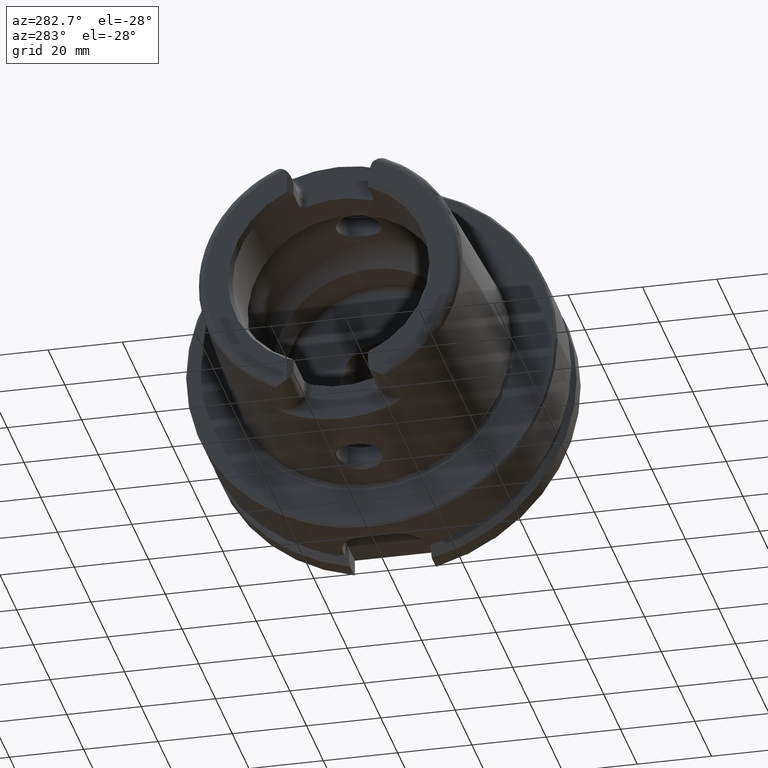
[diagram: clean part render]
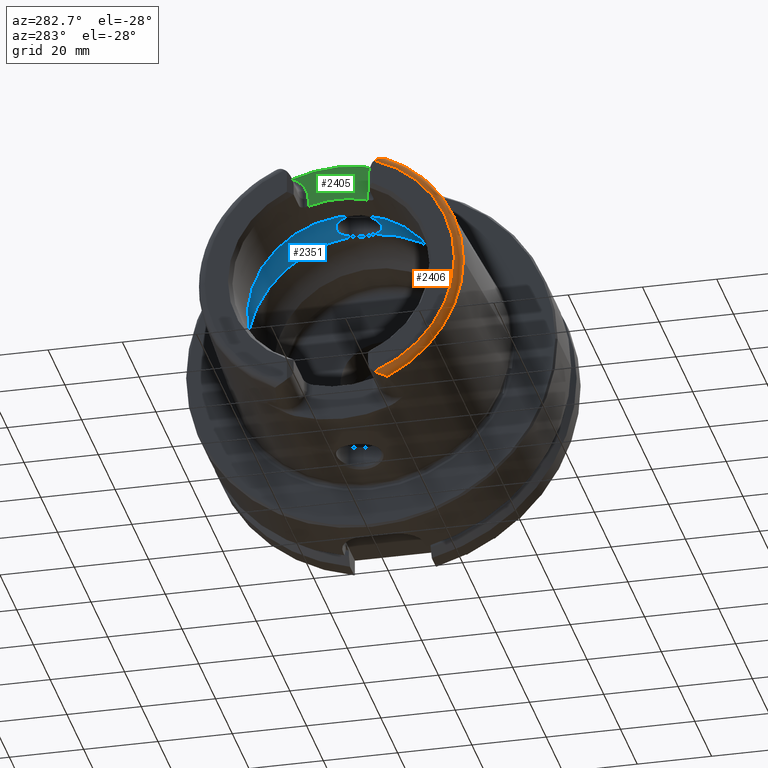
[diagram: same view with three faces highlighted in distinct colors, each labeled with its STEP entity id]
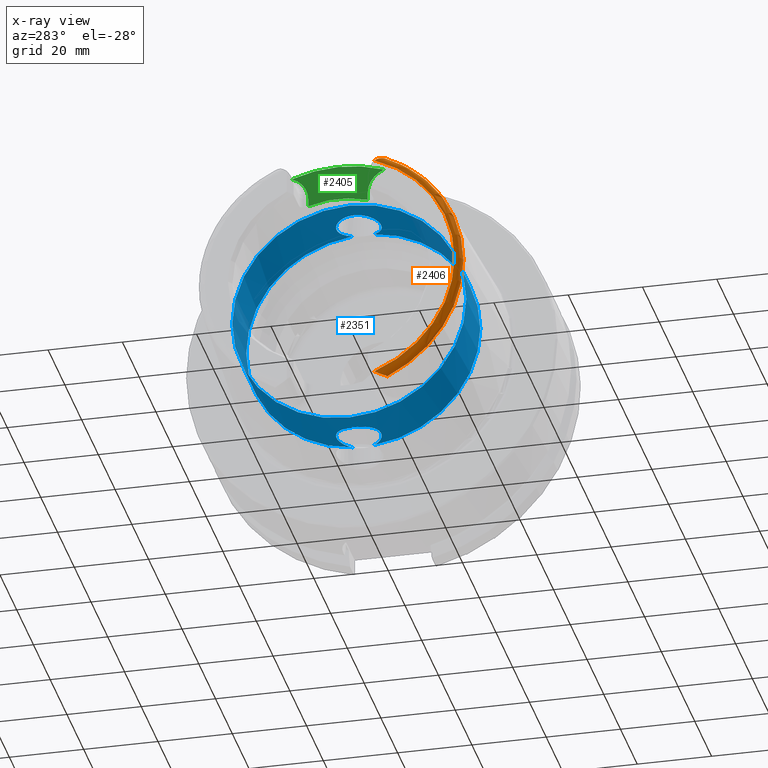
[diagram: x-ray of the same camera — body ghosted, the three highlighted faces saturated]
A machine part, auxiliary view with three faces highlighted in distinct colors.
The next image is the same camera in x-ray (body ghosted, the three faces saturated) — at least one of them is partly hidden behind the body in this view.
Their STEP definitions:

[orange] entity #2406 — the highlighted toroidal blend (fillet) surface has major radius 33.6002 mm and minor (blend) radius 2 mm.
#52=TOROIDAL_SURFACE('',#2688,33.6001839277785,2.);
#85=B_SPLINE_CURVE_WITH_KNOTS('',3,(#4098,#4099,#4100,#4101,#4102,#4103,
#4104,#4105,#4106,#4107,#4108,#4109),.UNSPECIFIED.,.F.,.F.,(4,2,2,2,2,4),
(-0.744571126726518,-0.701342830888641,-0.656522678464628,-0.531122919946975,
-0.406784567241786,-0.320835419118986),.UNSPECIFIED.);
#136=B_SPLINE_CURVE_WITH_KNOTS('',3,(#5325,#5326,#5327,#5328,#5329,#5330,
#5331,#5332,#5333,#5334,#5335,#5336),.UNSPECIFIED.,.F.,.F.,(4,2,2,2,2,4),
(-0.330531435638092,-0.267908000768824,-0.159978118105095,-0.0786368985358016,
-0.0319888850382436,0.),.UNSPECIFIED.);
#572=FACE_OUTER_BOUND('',#719,.T.);
#719=EDGE_LOOP('',(#2120,#2121,#2122,#2123,#2124));
#804=CIRCLE('',#2554,33.6001839277785);
#810=CIRCLE('',#2570,35.5976786130245);
#814=CIRCLE('',#2574,35.5976786130245);
#995=VERTEX_POINT('',#4079);
#996=VERTEX_POINT('',#4081);
#1001=VERTEX_POINT('',#4097);
#1016=VERTEX_POINT('',#4316);
#1017=VERTEX_POINT('',#4318);
#1272=EDGE_CURVE('',#996,#995,#804,.T.);
#1280=EDGE_CURVE('',#1001,#996,#85,.T.);
#1300=EDGE_CURVE('',#1016,#1017,#810,.T.);
#1313=EDGE_CURVE('',#1001,#1016,#814,.T.);
#1477=EDGE_CURVE('',#995,#1017,#136,.T.);
#2120=ORIENTED_EDGE('',*,*,#1280,.T.);
#2121=ORIENTED_EDGE('',*,*,#1272,.T.);
#2122=ORIENTED_EDGE('',*,*,#1477,.T.);
#2123=ORIENTED_EDGE('',*,*,#1300,.F.);
#2124=ORIENTED_EDGE('',*,*,#1313,.F.);
#2406=ADVANCED_FACE('',(#572),#52,.T.);
#2554=AXIS2_PLACEMENT_3D('',#4082,#2983,#2984);
#2570=AXIS2_PLACEMENT_3D('',#4319,#3027,#3028);
#2574=AXIS2_PLACEMENT_3D('',#4446,#3035,#3036);
#2688=AXIS2_PLACEMENT_3D('',#5324,#3321,#3322);
#2983=DIRECTION('center_axis',(1.,0.,0.));
#2984=DIRECTION('ref_axis',(0.,0.,-1.));
#3027=DIRECTION('center_axis',(1.,0.,0.));
#3028=DIRECTION('ref_axis',(0.,0.,-1.));
#3035=DIRECTION('center_axis',(1.,0.,0.));
#3036=DIRECTION('ref_axis',(0.,0.,-1.));
#3321=DIRECTION('center_axis',(1.,0.,0.));
#3322=DIRECTION('ref_axis',(0.,0.,-1.));
#4079=CARTESIAN_POINT('',(-50.,-12.0743049948301,-31.355757348091));
#4081=CARTESIAN_POINT('',(-50.,-12.0743049948301,31.355757348091));
#4082=CARTESIAN_POINT('Origin',(-50.,0.,0.));
#4097=CARTESIAN_POINT('',(-48.1000748840304,-15.0787152148571,32.2463497175327));
#4098=CARTESIAN_POINT('Ctrl Pts',(-48.1000748840304,-15.0787152148571,32.2463497175327));
#4099=CARTESIAN_POINT('Ctrl Pts',(-48.2106037175751,-15.0644627457708,32.2469012894916));
#4100=CARTESIAN_POINT('Ctrl Pts',(-48.3154292138326,-15.0273539899824,32.2483385926998));
#4101=CARTESIAN_POINT('Ctrl Pts',(-48.5163157198425,-14.9224481921473,32.2501843906849));
#4102=CARTESIAN_POINT('Ctrl Pts',(-48.6121978837474,-14.8534224082598,32.2504380645671));
#4103=CARTESIAN_POINT('Ctrl Pts',(-48.945264184207,-14.5689466462258,32.2439376039327));
#4104=CARTESIAN_POINT('Ctrl Pts',(-49.1880723127852,-14.2607780319834,32.2227822574558));
#4105=CARTESIAN_POINT('Ctrl Pts',(-49.6101150709732,-13.5547183211213,32.0774653757186));
#4106=CARTESIAN_POINT('Ctrl Pts',(-49.7793847368059,-13.1765954395989,31.957165019384));
#4107=CARTESIAN_POINT('Ctrl Pts',(-49.9574602860506,-12.5580264083439,31.6658578550016));
#4108=CARTESIAN_POINT('Ctrl Pts',(-50.,-12.3091419271059,31.5216553492714));
#4109=CARTESIAN_POINT('Ctrl Pts',(-50.,-12.0743049948301,31.355757348091));
#4316=CARTESIAN_POINT('',(-48.1000748840304,-35.5976786130245,-4.35945831705167E-15));
#4318=CARTESIAN_POINT('',(-48.1000748840304,-15.0787152148571,-32.2463497175327));
#4319=CARTESIAN_POINT('Origin',(-48.1000748840304,0.,0.));
#4446=CARTESIAN_POINT('Origin',(-48.1000748840304,0.,0.));
#5324=CARTESIAN_POINT('Origin',(-48.,0.,0.));
#5325=CARTESIAN_POINT('Ctrl Pts',(-50.,-12.0743049948301,-31.355757348091));
#5326=CARTESIAN_POINT('Ctrl Pts',(-50.,-12.2858381230511,-31.5051926299064));
#5327=CARTESIAN_POINT('Ctrl Pts',(-49.9653696826563,-12.5170331398669,-31.6430588255455));
#5328=CARTESIAN_POINT('Ctrl Pts',(-49.7810065498998,-13.1911222585011,-31.9692156023964));
#5329=CARTESIAN_POINT('Ctrl Pts',(-49.5806767805337,-13.6194685503754,-32.0969374367804));
#5330=CARTESIAN_POINT('Ctrl Pts',(-49.1716377200869,-14.2730899346346,-32.2192774131036));
#5331=CARTESIAN_POINT('Ctrl Pts',(-48.9774936618895,-14.5201969661755,-32.2395201073332));
#5332=CARTESIAN_POINT('Ctrl Pts',(-48.6675943633755,-14.8125911006811,-32.2505512851489));
#5333=CARTESIAN_POINT('Ctrl Pts',(-48.5398374959924,-14.912197389574,-32.2504544601106));
#5334=CARTESIAN_POINT('Ctrl Pts',(-48.3063803700173,-15.0305209025154,-32.2482139663407));
#5335=CARTESIAN_POINT('Ctrl Pts',(-48.2058276135777,-15.0650786147019,-32.2468774553032));
#5336=CARTESIAN_POINT('Ctrl Pts',(-48.1000748840304,-15.0787152148571,-32.2463497175327));

[blue] entity #2351 — the highlighted cylindrical surface (bore or boss wall) has radius 31.5 mm, axis along (-1, 0, 0).
#101=B_SPLINE_CURVE_WITH_KNOTS('',3,(#4489,#4490,#4491,#4492,#4493,#4494,
#4495,#4496,#4497,#4498,#4499,#4500,#4501,#4502,#4503,#4504,#4505,#4506,
#4507,#4508,#4509,#4510,#4511,#4512,#4513,#4514,#4515,#4516,#4517,#4518,
#4519),.UNSPECIFIED.,.F.,.F.,(4,2,2,2,2,2,2,2,2,2,2,3,2,2,4),(-2.42966289251045,
-2.26609494287567,-2.03948128472637,-1.81286762657707,-1.58625396842777,
-1.35964031027847,-1.1330370617835,-0.906433813288535,-0.679830564793567,
-0.453227316298599,-0.226613658149299,0.,0.2266136581493,0.453227316298599,
0.616795265988555),.UNSPECIFIED.);
#106=B_SPLINE_CURVE_WITH_KNOTS('',3,(#4681,#4682,#4683,#4684,#4685,#4686,
#4687,#4688,#4689,#4690,#4691,#4692,#4693,#4694,#4695,#4696,#4697,#4698,
#4699,#4700,#4701,#4702,#4703,#4704,#4705,#4706,#4707,#4708,#4709,#4710,
#4711),.UNSPECIFIED.,.F.,.F.,(4,2,2,3,2,2,2,2,2,2,2,2,2,2,4),(-0.616795265933374,
-0.453227316298598,-0.226613658149299,0.,0.2266136581493,0.453227316298599,
0.679830564793567,0.906433813288535,1.1330370617835,1.35964031027847,1.58625396842777,
1.81286762657707,2.03948128472637,2.26609494287567,2.42966289256562),
 .UNSPECIFIED.);
#154=CYLINDRICAL_SURFACE('',#2577,31.5);
#234=LINE('',#4727,#354);
#354=VECTOR('',#3048,31.5);
#517=FACE_OUTER_BOUND('',#661,.T.);
#661=EDGE_LOOP('',(#1812,#1813,#1814,#1815,#1816,#1817,#1818,#1819,#1820));
#815=CIRCLE('',#2578,31.5);
#816=CIRCLE('',#2579,31.5);
#817=CIRCLE('',#2580,31.5);
#818=CIRCLE('',#2581,31.5);
#819=CIRCLE('',#2582,31.5);
#1029=VERTEX_POINT('',#4477);
#1030=VERTEX_POINT('',#4488);
#1033=VERTEX_POINT('',#4668);
#1035=VERTEX_POINT('',#4680);
#1036=VERTEX_POINT('',#4724);
#1037=VERTEX_POINT('',#4726);
#1038=VERTEX_POINT('',#4728);
#1317=EDGE_CURVE('',#1030,#1029,#101,.T.);
#1323=EDGE_CURVE('',#1035,#1033,#106,.T.);
#1326=EDGE_CURVE('',#1036,#1033,#815,.T.);
#1327=EDGE_CURVE('',#1036,#1037,#234,.T.);
#1328=EDGE_CURVE('',#1037,#1038,#816,.T.);
#1329=EDGE_CURVE('',#1038,#1037,#817,.T.);
#1330=EDGE_CURVE('',#1030,#1036,#818,.T.);
#1331=EDGE_CURVE('',#1035,#1029,#819,.T.);
#1812=ORIENTED_EDGE('',*,*,#1323,.T.);
#1813=ORIENTED_EDGE('',*,*,#1326,.F.);
#1814=ORIENTED_EDGE('',*,*,#1327,.T.);
#1815=ORIENTED_EDGE('',*,*,#1328,.T.);
#1816=ORIENTED_EDGE('',*,*,#1329,.T.);
#1817=ORIENTED_EDGE('',*,*,#1327,.F.);
#1818=ORIENTED_EDGE('',*,*,#1330,.F.);
#1819=ORIENTED_EDGE('',*,*,#1317,.T.);
#1820=ORIENTED_EDGE('',*,*,#1331,.F.);
#2351=ADVANCED_FACE('',(#517),#154,.F.);
#2577=AXIS2_PLACEMENT_3D('',#4723,#3044,#3045);
#2578=AXIS2_PLACEMENT_3D('',#4725,#3046,#3047);
#2579=AXIS2_PLACEMENT_3D('',#4729,#3049,#3050);
#2580=AXIS2_PLACEMENT_3D('',#4730,#3051,#3052);
#2581=AXIS2_PLACEMENT_3D('',#4731,#3053,#3054);
#2582=AXIS2_PLACEMENT_3D('',#4732,#3055,#3056);
#3044=DIRECTION('center_axis',(-1.,0.,0.));
#3045=DIRECTION('ref_axis',(0.,1.,0.));
#3046=DIRECTION('center_axis',(-1.,0.,0.));
#3047=DIRECTION('ref_axis',(0.,0.,1.));
#3048=DIRECTION('',(-1.,0.,0.));
#3049=DIRECTION('center_axis',(-1.,0.,0.));
#3050=DIRECTION('ref_axis',(0.,0.,1.));
#3051=DIRECTION('center_axis',(-1.,0.,0.));
#3052=DIRECTION('ref_axis',(0.,0.,1.));
#3053=DIRECTION('center_axis',(-1.,0.,0.));
#3054=DIRECTION('ref_axis',(0.,0.,1.));
#3055=DIRECTION('center_axis',(-1.,0.,0.));
#3056=DIRECTION('ref_axis',(0.,0.,1.));
#4477=CARTESIAN_POINT('',(-9.74679434480896,2.89893607109041,-31.3663222207471));
#4488=CARTESIAN_POINT('',(-9.74679434480896,-2.89893607109041,-31.3663222207471));
#4489=CARTESIAN_POINT('Ctrl Pts',(-9.74679434480898,-2.8989360710904,-31.3663222207471));
#4490=CARTESIAN_POINT('Ctrl Pts',(-10.0245557799842,-3.40227174537722,-31.3198029657389));
#4491=CARTESIAN_POINT('Ctrl Pts',(-10.3735944692601,-3.85887584349869,-31.2651415110221));
#4492=CARTESIAN_POINT('Ctrl Pts',(-11.289042660848,-4.77432403508655,-31.140708727458));
#4493=CARTESIAN_POINT('Ctrl Pts',(-11.9624834305428,-5.23577180141274,-31.0633803744766));
#4494=CARTESIAN_POINT('Ctrl Pts',(-13.4401908644727,-5.84865855662958,-30.9538382316308));
#4495=CARTESIAN_POINT('Ctrl Pts',(-14.2446211395023,-6.00000000000001,-30.9232921921325));
#4496=CARTESIAN_POINT('Ctrl Pts',(-15.7553788604977,-6.00000000000001,-30.9232921921325));
#4497=CARTESIAN_POINT('Ctrl Pts',(-16.5598091355273,-5.84865855662958,-30.9538382316308));
#4498=CARTESIAN_POINT('Ctrl Pts',(-18.0375165694572,-5.23577180141275,-31.0633803744766));
#4499=CARTESIAN_POINT('Ctrl Pts',(-18.710957339152,-4.77432403508655,-31.140708727458));
#4500=CARTESIAN_POINT('Ctrl Pts',(-19.7742996118461,-3.71098176239249,-31.2852440928545));
#4501=CARTESIAN_POINT('Ctrl Pts',(-20.2357665181958,-3.03753058698362,-31.3619556484746));
#4502=CARTESIAN_POINT('Ctrl Pts',(-20.8486671603361,-1.55978711209124,-31.4700797313679));
#4503=CARTESIAN_POINT('Ctrl Pts',(-21.,-0.755344161649895,-31.5));
#4504=CARTESIAN_POINT('Ctrl Pts',(-21.,0.755344161649892,-31.5));
#4505=CARTESIAN_POINT('Ctrl Pts',(-20.8486671603361,1.55978711209124,-31.4700797313679));
#4506=CARTESIAN_POINT('Ctrl Pts',(-20.2357665181958,3.03753058698362,-31.3619556484746));
#4507=CARTESIAN_POINT('Ctrl Pts',(-19.7742996118461,3.71098176239249,-31.2852440928545));
#4508=CARTESIAN_POINT('Ctrl Pts',(-18.710957339152,4.77432403508655,-31.140708727458));
#4509=CARTESIAN_POINT('Ctrl Pts',(-18.0375165694572,5.23577180141274,-31.0633803744766));
#4510=CARTESIAN_POINT('Ctrl Pts',(-16.5598091355273,5.84865855662958,-30.9538382316308));
#4511=CARTESIAN_POINT('Ctrl Pts',(-15.7553788604977,6.00000000000001,-30.9232921921325));
#4512=CARTESIAN_POINT('Ctrl Pts',(-15.,6.00000000000001,-30.9232921921325));
#4513=CARTESIAN_POINT('Ctrl Pts',(-14.2446211395023,6.00000000000001,-30.9232921921325));
#4514=CARTESIAN_POINT('Ctrl Pts',(-13.4401908644727,5.84865855662958,-30.9538382316308));
#4515=CARTESIAN_POINT('Ctrl Pts',(-11.9624834305428,5.23577180141274,-31.0633803744766));
#4516=CARTESIAN_POINT('Ctrl Pts',(-11.289042660848,4.77432403508655,-31.140708727458));
#4517=CARTESIAN_POINT('Ctrl Pts',(-10.3735944691306,3.85887584336922,-31.2651415110397));
#4518=CARTESIAN_POINT('Ctrl Pts',(-10.0245557801354,3.40227174565105,-31.3198029657135));
#4519=CARTESIAN_POINT('Ctrl Pts',(-9.74679434480898,2.8989360710904,-31.3663222207471));
#4668=CARTESIAN_POINT('',(-9.74679434480896,-2.89893607109042,31.3663222207471));
#4680=CARTESIAN_POINT('',(-9.74679434480896,2.89893607109042,31.3663222207471));
#4681=CARTESIAN_POINT('Ctrl Pts',(-9.74679434480897,2.89893607109041,31.3663222207471));
#4682=CARTESIAN_POINT('Ctrl Pts',(-10.0245557799842,3.40227174537723,31.3198029657389));
#4683=CARTESIAN_POINT('Ctrl Pts',(-10.3735944692601,3.85887584349869,31.2651415110221));
#4684=CARTESIAN_POINT('Ctrl Pts',(-11.289042660848,4.77432403508655,31.140708727458));
#4685=CARTESIAN_POINT('Ctrl Pts',(-11.9624834305428,5.23577180141274,31.0633803744766));
#4686=CARTESIAN_POINT('Ctrl Pts',(-13.4401908644727,5.84865855662958,30.9538382316308));
#4687=CARTESIAN_POINT('Ctrl Pts',(-14.2446211395023,6.00000000000001,30.9232921921325));
#4688=CARTESIAN_POINT('Ctrl Pts',(-15.,6.00000000000001,30.9232921921325));
#4689=CARTESIAN_POINT('Ctrl Pts',(-15.7553788604977,6.00000000000001,30.9232921921325));
#4690=CARTESIAN_POINT('Ctrl Pts',(-16.5598091355273,5.84865855662958,30.9538382316308));
#4691=CARTESIAN_POINT('Ctrl Pts',(-18.0375165694572,5.23577180141274,31.0633803744766));
#4692=CARTESIAN_POINT('Ctrl Pts',(-18.710957339152,4.77432403508655,31.140708727458));
#4693=CARTESIAN_POINT('Ctrl Pts',(-19.7742996118461,3.71098176239249,31.2852440928545));
#4694=CARTESIAN_POINT('Ctrl Pts',(-20.2357665181958,3.03753058698362,31.3619556484746));
#4695=CARTESIAN_POINT('Ctrl Pts',(-20.8486671603361,1.55978711209124,31.4700797313679));
#4696=CARTESIAN_POINT('Ctrl Pts',(-21.,0.755344161649892,31.5));
#4697=CARTESIAN_POINT('Ctrl Pts',(-21.,-0.755344161649894,31.5));
#4698=CARTESIAN_POINT('Ctrl Pts',(-20.8486671603361,-1.55978711209124,31.4700797313679));
#4699=CARTESIAN_POINT('Ctrl Pts',(-20.2357665181958,-3.03753058698362,31.3619556484746));
#4700=CARTESIAN_POINT('Ctrl Pts',(-19.7742996118461,-3.71098176239249,31.2852440928545));
#4701=CARTESIAN_POINT('Ctrl Pts',(-18.710957339152,-4.77432403508655,31.140708727458));
#4702=CARTESIAN_POINT('Ctrl Pts',(-18.0375165694572,-5.23577180141274,31.0633803744766));
#4703=CARTESIAN_POINT('Ctrl Pts',(-16.5598091355273,-5.84865855662958,30.9538382316308));
#4704=CARTESIAN_POINT('Ctrl Pts',(-15.7553788604977,-6.00000000000001,30.9232921921325));
#4705=CARTESIAN_POINT('Ctrl Pts',(-14.2446211395023,-6.00000000000001,30.9232921921325));
#4706=CARTESIAN_POINT('Ctrl Pts',(-13.4401908644727,-5.84865855662958,30.9538382316308));
#4707=CARTESIAN_POINT('Ctrl Pts',(-11.9624834305428,-5.23577180141274,31.0633803744766));
#4708=CARTESIAN_POINT('Ctrl Pts',(-11.289042660848,-4.77432403508655,31.140708727458));
#4709=CARTESIAN_POINT('Ctrl Pts',(-10.3735944691306,-3.85887584336922,31.2651415110397));
#4710=CARTESIAN_POINT('Ctrl Pts',(-10.0245557801353,-3.40227174565106,31.3198029657135));
#4711=CARTESIAN_POINT('Ctrl Pts',(-9.74679434480897,-2.89893607109041,31.3663222207471));
#4723=CARTESIAN_POINT('Origin',(-18.1430342013226,0.,0.));
#4724=CARTESIAN_POINT('',(-9.74679434480896,-31.5,3.85763741731416E-15));
#4725=CARTESIAN_POINT('Origin',(-9.74679434480896,0.,0.));
#4726=CARTESIAN_POINT('',(-26.5392740578363,-31.5,3.85763741731416E-15));
#4727=CARTESIAN_POINT('',(-18.1430342013226,-31.5,3.85763741731416E-15));
#4728=CARTESIAN_POINT('',(-26.5392740578363,-3.85763741731416E-15,-31.5));
#4729=CARTESIAN_POINT('Origin',(-26.5392740578363,0.,0.));
#4730=CARTESIAN_POINT('Origin',(-26.5392740578363,0.,0.));
#4731=CARTESIAN_POINT('Origin',(-9.74679434480896,0.,0.));
#4732=CARTESIAN_POINT('Origin',(-9.74679434480896,0.,0.));

[green] entity #2405 — the highlighted planar face has unit normal (-1, 0, 0).
#280=LINE('',#5235,#400);
#281=LINE('',#5264,#401);
#400=VECTOR('',#3252,10.);
#401=VECTOR('',#3265,10.);
#571=FACE_OUTER_BOUND('',#718,.T.);
#718=EDGE_LOOP('',(#2114,#2115,#2116,#2117,#2118,#2119));
#813=CIRCLE('',#2573,36.003493987976);
#856=CIRCLE('',#2659,6.88);
#858=CIRCLE('',#2662,6.88);
#870=CIRCLE('',#2687,26.5);
#1025=VERTEX_POINT('',#4413);
#1026=VERTEX_POINT('',#4430);
#1117=VERTEX_POINT('',#5232);
#1118=VERTEX_POINT('',#5234);
#1119=VERTEX_POINT('',#5249);
#1120=VERTEX_POINT('',#5253);
#1311=EDGE_CURVE('',#1025,#1026,#813,.T.);
#1449=EDGE_CURVE('',#1117,#1118,#280,.T.);
#1451=EDGE_CURVE('',#1026,#1117,#856,.T.);
#1453=EDGE_CURVE('',#1119,#1025,#858,.T.);
#1455=EDGE_CURVE('',#1120,#1119,#281,.T.);
#1476=EDGE_CURVE('',#1118,#1120,#870,.T.);
#2114=ORIENTED_EDGE('',*,*,#1451,.F.);
#2115=ORIENTED_EDGE('',*,*,#1311,.F.);
#2116=ORIENTED_EDGE('',*,*,#1453,.F.);
#2117=ORIENTED_EDGE('',*,*,#1455,.F.);
#2118=ORIENTED_EDGE('',*,*,#1476,.F.);
#2119=ORIENTED_EDGE('',*,*,#1449,.F.);
#2294=PLANE('',#2686);
#2405=ADVANCED_FACE('',(#571),#2294,.T.);
#2573=AXIS2_PLACEMENT_3D('',#4431,#3033,#3034);
#2659=AXIS2_PLACEMENT_3D('',#5247,#3255,#3256);
#2662=AXIS2_PLACEMENT_3D('',#5251,#3261,#3262);
#2686=AXIS2_PLACEMENT_3D('',#5322,#3317,#3318);
#2687=AXIS2_PLACEMENT_3D('',#5323,#3319,#3320);
#3033=DIRECTION('center_axis',(1.,0.,0.));
#3034=DIRECTION('ref_axis',(0.,1.,0.));
#3252=DIRECTION('',(0.,0.,-1.));
#3255=DIRECTION('center_axis',(-1.,0.,0.));
#3256=DIRECTION('ref_axis',(0.,0.564947834751706,0.82512662301574));
#3261=DIRECTION('center_axis',(-1.,0.,0.));
#3262=DIRECTION('ref_axis',(0.,-0.564947834751705,0.825126623015741));
#3265=DIRECTION('',(0.,0.,1.));
#3317=DIRECTION('center_axis',(-1.,0.,0.));
#3318=DIRECTION('ref_axis',(0.,0.,1.));
#3319=DIRECTION('center_axis',(-1.,0.,0.));
#3320=DIRECTION('ref_axis',(0.,1.,0.));
#4413=CARTESIAN_POINT('',(-40.,12.4227760464511,33.7923987701664));
#4430=CARTESIAN_POINT('',(-40.,-12.4227760464511,33.7923987701664));
#4431=CARTESIAN_POINT('Origin',(-40.,0.,0.));
#5232=CARTESIAN_POINT('',(-40.,-8.01,27.37));
#5234=CARTESIAN_POINT('',(-40.,-8.01,25.2604414054862));
#5235=CARTESIAN_POINT('',(-40.,-8.01,23.5));
#5247=CARTESIAN_POINT('Origin',(-40.,-14.89,27.37));
#5249=CARTESIAN_POINT('',(-40.,8.01,27.37));
#5251=CARTESIAN_POINT('Origin',(-40.,14.89,27.37));
#5253=CARTESIAN_POINT('',(-40.,8.01,25.2604414054862));
#5264=CARTESIAN_POINT('',(-40.,8.01,28.185));
#5322=CARTESIAN_POINT('Origin',(-40.,0.,29.));
#5323=CARTESIAN_POINT('Origin',(-40.,0.,0.));